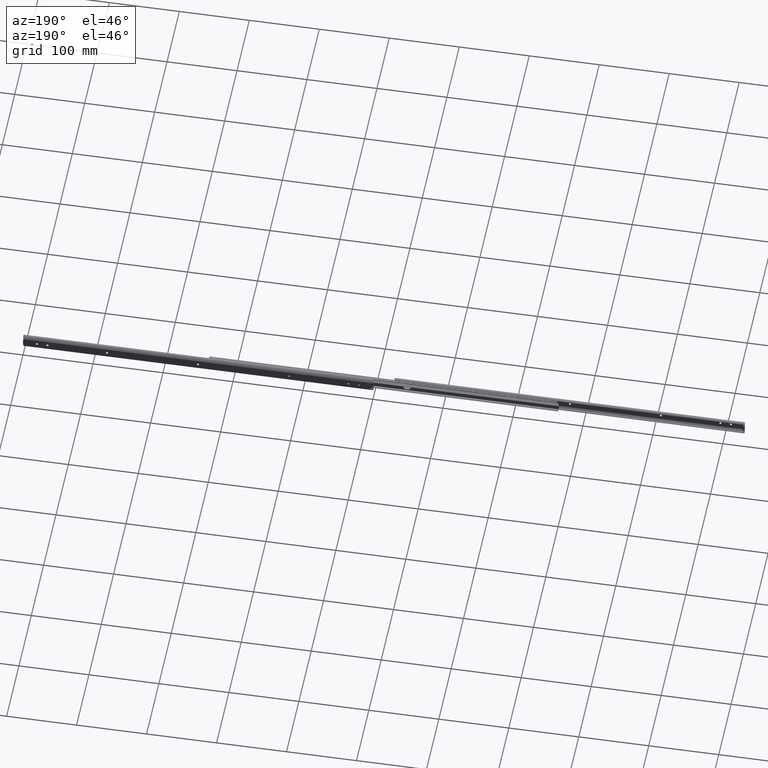
[diagram: clean part render]
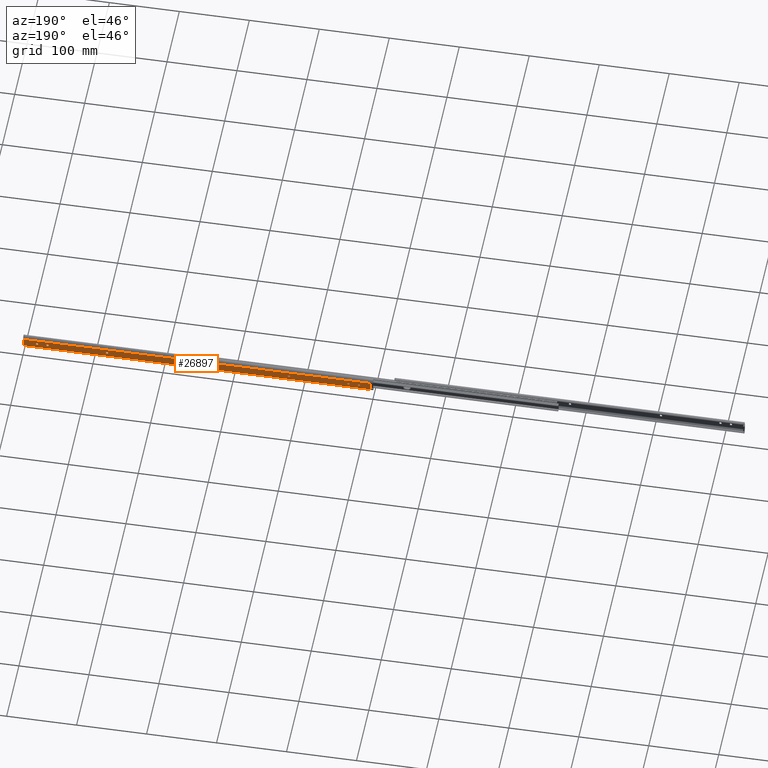
[diagram: same view with one face highlighted and labeled with its STEP entity id]
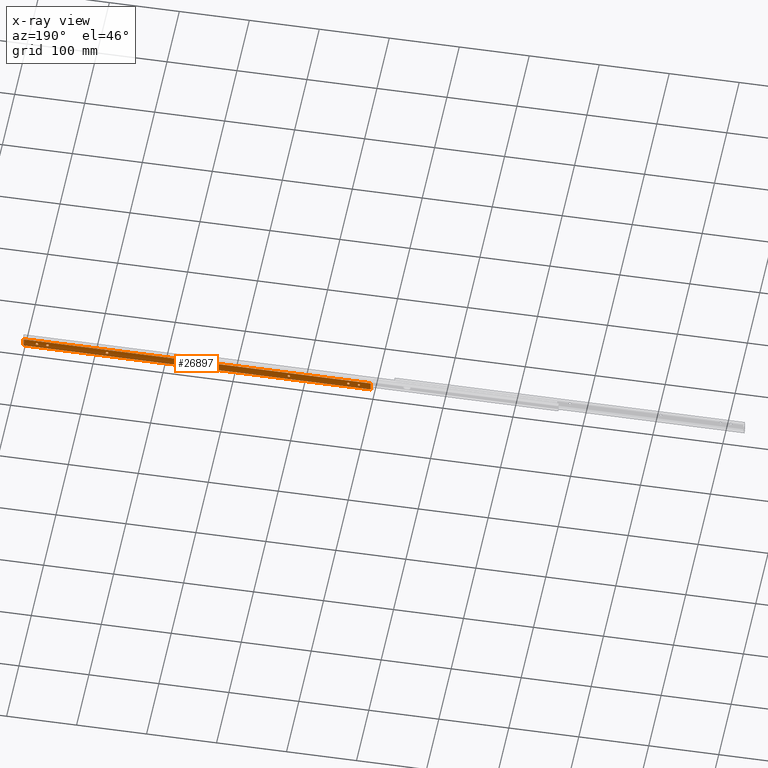
[diagram: x-ray of the same camera — body ghosted, the highlighted face saturated]
A machine part, auxiliary view. The second image highlights one B-rep face of the part: STEP entity #26897.
The next image is the same camera in x-ray: the body ghosted, the highlighted face saturated — about 0% of this face is hidden behind the body in this view.
In plain terms, the highlighted face is a freeform B-spline surface patch.
Its self-contained STEP definition (entity closure, byte-faithful):
#23578=CARTESIAN_POINT('',(21.597015676147201,5.204170E-017,-0.097677684964874));
#23579=VERTEX_POINT('',#23578);
#23585=CARTESIAN_POINT('',(20.0,0.0,-1.600000000000000));
#23586=VERTEX_POINT('',#23585);
#23587=CARTESIAN_POINT('',(20.0,0.0,-1.600000000000000));
#23588=CARTESIAN_POINT('',(21.505129666052557,0.0,-1.600000000000001));
#23589=CARTESIAN_POINT('',(21.597015676147201,5.204170E-017,-0.097677684964874));
#23597=(BOUNDED_CURVE()B_SPLINE_CURVE(2,(#23587,#23588,#23589),.UNSPECIFIED.,.F.,.U.)B_SPLINE_CURVE_WITH_KNOTS((3,3),(0.500000000000000,0.739332957550924),.UNSPECIFIED.)CURVE()GEOMETRIC_REPRESENTATION_ITEM()RATIONAL_B_SPLINE_CURVE((1.0,0.719603998779066,0.976072031619401))REPRESENTATION_ITEM(''));
#23598=EDGE_CURVE('',#23586,#23579,#23597,.T.);
#23600=CARTESIAN_POINT('',(18.411184761992889,4.968999E-017,0.188854810572561));
#23601=VERTEX_POINT('',#23600);
#23602=CARTESIAN_POINT('',(18.411184761992882,4.968999E-017,0.188854810572561));
#23603=CARTESIAN_POINT('',(18.399999999999999,0.0,0.094758626936107));
#23604=CARTESIAN_POINT('',(18.399999999999999,0.0,0.0));
#23605=CARTESIAN_POINT('',(18.399999999999991,0.0,-1.600000000000000));
#23606=CARTESIAN_POINT('',(20.0,0.0,-1.600000000000000));
#23614=(BOUNDED_CURVE()B_SPLINE_CURVE(2,(#23602,#23603,#23604,#23605,#23606),.UNSPECIFIED.,.F.,.U.)B_SPLINE_CURVE_WITH_KNOTS((3,2,3),(0.229562466043801,0.250000000000000,0.500000000000000),.UNSPECIFIED.)CURVE()GEOMETRIC_REPRESENTATION_ITEM()RATIONAL_B_SPLINE_CURVE((0.956026739542767,0.976055939579838,1.0,0.707106781186548,1.0))REPRESENTATION_ITEM(''));
#23615=EDGE_CURVE('',#23601,#23586,#23614,.T.);
#23659=CARTESIAN_POINT('',(20.0,0.0,1.600000000000000));
#23660=VERTEX_POINT('',#23659);
#23661=CARTESIAN_POINT('',(20.0,0.0,1.600000000000000));
#23662=CARTESIAN_POINT('',(18.578920821747779,0.0,1.600000000000000));
#23663=CARTESIAN_POINT('',(18.411184761992882,4.968999E-017,0.188854810572561));
#23671=(BOUNDED_CURVE()B_SPLINE_CURVE(2,(#23661,#23662,#23663),.UNSPECIFIED.,.F.,.U.)B_SPLINE_CURVE_WITH_KNOTS((3,3),(0.0,0.229562466043801),.UNSPECIFIED.)CURVE()GEOMETRIC_REPRESENTATION_ITEM()RATIONAL_B_SPLINE_CURVE((1.0,0.731050841606709,0.956026739542767))REPRESENTATION_ITEM(''));
#23672=EDGE_CURVE('',#23660,#23601,#23671,.T.);
#23674=CARTESIAN_POINT('',(21.597015676147205,5.204170E-017,-0.097677684964874));
#23675=CARTESIAN_POINT('',(21.599999999999998,0.0,-0.048884443047715));
#23676=CARTESIAN_POINT('',(21.600000000000001,0.0,0.0));
#23677=CARTESIAN_POINT('',(21.600000000000005,0.0,1.600000000000000));
#23678=CARTESIAN_POINT('',(20.0,0.0,1.600000000000000));
#23686=(BOUNDED_CURVE()B_SPLINE_CURVE(2,(#23674,#23675,#23676,#23677,#23678),.UNSPECIFIED.,.F.,.U.)B_SPLINE_CURVE_WITH_KNOTS((3,2,3),(0.739332957550924,0.750000000000000,1.0),.UNSPECIFIED.)CURVE()GEOMETRIC_REPRESENTATION_ITEM()RATIONAL_B_SPLINE_CURVE((0.976072031619400,0.987502782407481,1.0,0.707106781186548,1.0))REPRESENTATION_ITEM(''));
#23687=EDGE_CURVE('',#23579,#23660,#23686,.T.);
#23722=CARTESIAN_POINT('',(35.299999999999997,8.526513E-014,-1.600000000000080));
#23723=VERTEX_POINT('',#23722);
#23729=CARTESIAN_POINT('',(34.700000000000003,0.0,-1.600000000000000));
#23730=VERTEX_POINT('',#23729);
#23731=CARTESIAN_POINT('',(34.700000000000003,0.0,-1.600000000000000));
#23732=CARTESIAN_POINT('',(35.299999999999997,8.526513E-014,-1.600000000000080));
#23733=QUASI_UNIFORM_CURVE('',1,(#23731,#23732),.UNSPECIFIED.,.F.,.U.);
#23734=EDGE_CURVE('',#23730,#23723,#23733,.T.);
#23780=CARTESIAN_POINT('',(34.700000000000003,0.0,1.600000000000025));
#23781=VERTEX_POINT('',#23780);
#23782=CARTESIAN_POINT('',(34.700000000000003,0.0,1.600000000000000));
#23783=CARTESIAN_POINT('',(33.100000000000009,0.0,1.600000000000000));
#23784=CARTESIAN_POINT('',(33.100000000000001,0.0,0.0));
#23785=CARTESIAN_POINT('',(33.100000000000009,0.0,-1.600000000000000));
#23786=CARTESIAN_POINT('',(34.700000000000003,0.0,-1.600000000000000));
#23794=(BOUNDED_CURVE()B_SPLINE_CURVE(2,(#23782,#23783,#23784,#23785,#23786),.UNSPECIFIED.,.F.,.U.)B_SPLINE_CURVE_WITH_KNOTS((3,2,3),(0.0,0.500000000000000,1.0),.UNSPECIFIED.)CURVE()GEOMETRIC_REPRESENTATION_ITEM()RATIONAL_B_SPLINE_CURVE((1.0,0.707106781186548,1.0,0.707106781186548,1.0))REPRESENTATION_ITEM(''));
#23795=EDGE_CURVE('',#23781,#23730,#23794,.T.);
#23818=CARTESIAN_POINT('',(35.299999999999997,0.0,1.600000000000025));
#23819=VERTEX_POINT('',#23818);
#23820=CARTESIAN_POINT('',(35.299999999999997,0.0,1.600000000000025));
#23821=CARTESIAN_POINT('',(34.700000000000003,0.0,1.600000000000025));
#23822=QUASI_UNIFORM_CURVE('',1,(#23820,#23821),.UNSPECIFIED.,.F.,.U.);
#23823=EDGE_CURVE('',#23819,#23781,#23822,.T.);
#23867=CARTESIAN_POINT('',(35.299999999999997,8.526513E-014,-1.600000000000080));
#23868=CARTESIAN_POINT('',(36.900000000000006,0.0,-1.600000000000000));
#23869=CARTESIAN_POINT('',(36.899999999999999,0.0,0.0));
#23870=CARTESIAN_POINT('',(36.900000000000006,0.0,1.600000000000000));
#23871=CARTESIAN_POINT('',(35.299999999999997,0.0,1.600000000000000));
#23879=(BOUNDED_CURVE()B_SPLINE_CURVE(2,(#23867,#23868,#23869,#23870,#23871),.UNSPECIFIED.,.F.,.U.)B_SPLINE_CURVE_WITH_KNOTS((3,2,3),(0.0,0.500000000000000,1.0),.UNSPECIFIED.)CURVE()GEOMETRIC_REPRESENTATION_ITEM()RATIONAL_B_SPLINE_CURVE((1.0,0.707106781186548,1.0,0.707106781186548,1.0))REPRESENTATION_ITEM(''));
#23880=EDGE_CURVE('',#23723,#23819,#23879,.T.);
#23923=CARTESIAN_POINT('',(120.300000000000000,1.110223E-013,1.600000000000000));
#23924=VERTEX_POINT('',#23923);
#23930=CARTESIAN_POINT('',(120.300000000000000,0.0,-1.600000000000080));
#23931=VERTEX_POINT('',#23930);
#23932=CARTESIAN_POINT('',(120.300000000000000,0.0,-1.600000000000000));
#23933=CARTESIAN_POINT('',(121.900000000000010,0.0,-1.600000000000000));
#23934=CARTESIAN_POINT('',(121.900000000000010,0.0,0.0));
#23935=CARTESIAN_POINT('',(121.900000000000010,0.0,1.600000000000000));
#23936=CARTESIAN_POINT('',(120.300000000000000,0.0,1.600000000000000));
#23944=(BOUNDED_CURVE()B_SPLINE_CURVE(2,(#23932,#23933,#23934,#23935,#23936),.UNSPECIFIED.,.F.,.U.)B_SPLINE_CURVE_WITH_KNOTS((3,2,3),(0.0,0.500000000000000,1.0),.UNSPECIFIED.)CURVE()GEOMETRIC_REPRESENTATION_ITEM()RATIONAL_B_SPLINE_CURVE((1.0,0.707106781186548,1.0,0.707106781186548,1.0))REPRESENTATION_ITEM(''));
#23945=EDGE_CURVE('',#23931,#23924,#23944,.T.);
#23968=CARTESIAN_POINT('',(119.700000000000000,0.0,-1.600000000000000));
#23969=VERTEX_POINT('',#23968);
#23970=CARTESIAN_POINT('',(119.700000000000000,0.0,-1.600000000000000));
#23971=CARTESIAN_POINT('',(120.300000000000000,0.0,-1.600000000000080));
#23972=QUASI_UNIFORM_CURVE('',1,(#23970,#23971),.UNSPECIFIED.,.F.,.U.);
#23973=EDGE_CURVE('',#23969,#23931,#23972,.T.);
#24019=CARTESIAN_POINT('',(119.700000000000000,0.0,1.600000000000000));
#24020=VERTEX_POINT('',#24019);
#24021=CARTESIAN_POINT('',(119.700000000000000,0.0,1.600000000000000));
#24022=CARTESIAN_POINT('',(118.099999999999980,0.0,1.600000000000000));
#24023=CARTESIAN_POINT('',(118.099999999999990,0.0,0.0));
#24024=CARTESIAN_POINT('',(118.099999999999980,0.0,-1.600000000000000));
#24025=CARTESIAN_POINT('',(119.700000000000000,0.0,-1.600000000000000));
#24033=(BOUNDED_CURVE()B_SPLINE_CURVE(2,(#24021,#24022,#24023,#24024,#24025),.UNSPECIFIED.,.F.,.U.)B_SPLINE_CURVE_WITH_KNOTS((3,2,3),(0.0,0.500000000000000,1.0),.UNSPECIFIED.)CURVE()GEOMETRIC_REPRESENTATION_ITEM()RATIONAL_B_SPLINE_CURVE((1.0,0.707106781186548,1.0,0.707106781186548,1.0))REPRESENTATION_ITEM(''));
#24034=EDGE_CURVE('',#24020,#23969,#24033,.T.);
#24055=CARTESIAN_POINT('',(120.300000000000000,1.110223E-013,1.600000000000000));
#24056=CARTESIAN_POINT('',(119.700000000000000,0.0,1.600000000000000));
#24057=QUASI_UNIFORM_CURVE('',1,(#24055,#24056),.UNSPECIFIED.,.F.,.U.);
#24058=EDGE_CURVE('',#23924,#24020,#24057,.T.);
#24078=CARTESIAN_POINT('',(250.300000000000010,8.526513E-014,-1.600000000000000));
#24079=VERTEX_POINT('',#24078);
#24085=CARTESIAN_POINT('',(249.699999999999990,0.0,-1.600000000000000));
#24086=VERTEX_POINT('',#24085);
#24087=CARTESIAN_POINT('',(249.699999999999990,0.0,-1.600000000000000));
#24088=CARTESIAN_POINT('',(250.300000000000010,8.526513E-014,-1.600000000000000));
#24089=QUASI_UNIFORM_CURVE('',1,(#24087,#24088),.UNSPECIFIED.,.F.,.U.);
#24090=EDGE_CURVE('',#24086,#24079,#24089,.T.);
#24136=CARTESIAN_POINT('',(249.699999999999990,0.0,1.599999999999910));
#24137=VERTEX_POINT('',#24136);
#24138=CARTESIAN_POINT('',(249.699999999999990,0.0,1.600000000000000));
#24139=CARTESIAN_POINT('',(248.100000000000080,0.0,1.600000000000000));
#24140=CARTESIAN_POINT('',(248.099999999999990,0.0,0.0));
#24141=CARTESIAN_POINT('',(248.100000000000080,0.0,-1.600000000000000));
#24142=CARTESIAN_POINT('',(249.699999999999990,0.0,-1.600000000000000));
#24150=(BOUNDED_CURVE()B_SPLINE_CURVE(2,(#24138,#24139,#24140,#24141,#24142),.UNSPECIFIED.,.F.,.U.)B_SPLINE_CURVE_WITH_KNOTS((3,2,3),(0.0,0.500000000000000,1.0),.UNSPECIFIED.)CURVE()GEOMETRIC_REPRESENTATION_ITEM()RATIONAL_B_SPLINE_CURVE((1.0,0.707106781186548,1.0,0.707106781186548,1.0))REPRESENTATION_ITEM(''));
#24151=EDGE_CURVE('',#24137,#24086,#24150,.T.);
#24174=CARTESIAN_POINT('',(250.300000000000010,0.0,1.599999999999910));
#24175=VERTEX_POINT('',#24174);
#24176=CARTESIAN_POINT('',(250.300000000000010,0.0,1.599999999999910));
#24177=CARTESIAN_POINT('',(249.699999999999990,0.0,1.599999999999910));
#24178=QUASI_UNIFORM_CURVE('',1,(#24176,#24177),.UNSPECIFIED.,.F.,.U.);
#24179=EDGE_CURVE('',#24175,#24137,#24178,.T.);
#24223=CARTESIAN_POINT('',(250.300000000000010,0.0,-1.600000000000000));
#24224=CARTESIAN_POINT('',(251.900000000000090,0.0,-1.600000000000000));
#24225=CARTESIAN_POINT('',(251.900000000000010,0.0,0.0));
#24226=CARTESIAN_POINT('',(251.900000000000090,0.0,1.600000000000000));
#24227=CARTESIAN_POINT('',(250.300000000000010,0.0,1.600000000000000));
#24235=(BOUNDED_CURVE()B_SPLINE_CURVE(2,(#24223,#24224,#24225,#24226,#24227),.UNSPECIFIED.,.F.,.U.)B_SPLINE_CURVE_WITH_KNOTS((3,2,3),(0.0,0.500000000000000,1.0),.UNSPECIFIED.)CURVE()GEOMETRIC_REPRESENTATION_ITEM()RATIONAL_B_SPLINE_CURVE((1.0,0.707106781186548,1.0,0.707106781186548,1.0))REPRESENTATION_ITEM(''));
#24236=EDGE_CURVE('',#24079,#24175,#24235,.T.);
#24256=CARTESIAN_POINT('',(380.300000000000010,8.526513E-014,-1.600000000000000));
#24257=VERTEX_POINT('',#24256);
#24263=CARTESIAN_POINT('',(379.699999999999990,0.0,-1.600000000000025));
#24264=VERTEX_POINT('',#24263);
#24265=CARTESIAN_POINT('',(379.699999999999990,0.0,-1.600000000000025));
#24266=CARTESIAN_POINT('',(380.300000000000010,8.526513E-014,-1.600000000000000));
#24267=QUASI_UNIFORM_CURVE('',1,(#24265,#24266),.UNSPECIFIED.,.F.,.U.);
#24268=EDGE_CURVE('',#24264,#24257,#24267,.T.);
#24314=CARTESIAN_POINT('',(379.699999999999990,0.0,1.599999999999910));
#24315=VERTEX_POINT('',#24314);
#24316=CARTESIAN_POINT('',(379.699999999999990,0.0,1.600000000000025));
#24317=CARTESIAN_POINT('',(378.100000000000020,0.0,1.600000000000026));
#24318=CARTESIAN_POINT('',(378.099999999999910,0.0,0.0));
#24319=CARTESIAN_POINT('',(378.100000000000020,0.0,-1.600000000000026));
#24320=CARTESIAN_POINT('',(379.699999999999990,0.0,-1.600000000000025));
#24328=(BOUNDED_CURVE()B_SPLINE_CURVE(2,(#24316,#24317,#24318,#24319,#24320),.UNSPECIFIED.,.F.,.U.)B_SPLINE_CURVE_WITH_KNOTS((3,2,3),(0.0,0.500000000000000,1.0),.UNSPECIFIED.)CURVE()GEOMETRIC_REPRESENTATION_ITEM()RATIONAL_B_SPLINE_CURVE((1.0,0.707106781186547,1.0,0.707106781186547,1.0))REPRESENTATION_ITEM(''));
#24329=EDGE_CURVE('',#24315,#24264,#24328,.T.);
#24352=CARTESIAN_POINT('',(380.300000000000010,0.0,1.599999999999910));
#24353=VERTEX_POINT('',#24352);
#24354=CARTESIAN_POINT('',(380.300000000000010,0.0,1.599999999999910));
#24355=CARTESIAN_POINT('',(379.699999999999990,0.0,1.599999999999910));
#24356=QUASI_UNIFORM_CURVE('',1,(#24354,#24355),.UNSPECIFIED.,.F.,.U.);
#24357=EDGE_CURVE('',#24353,#24315,#24356,.T.);
#24401=CARTESIAN_POINT('',(380.300000000000010,0.0,-1.600000000000025));
#24402=CARTESIAN_POINT('',(381.900000000000150,0.0,-1.600000000000026));
#24403=CARTESIAN_POINT('',(381.900000000000090,0.0,0.0));
#24404=CARTESIAN_POINT('',(381.900000000000150,0.0,1.600000000000026));
#24405=CARTESIAN_POINT('',(380.300000000000010,0.0,1.600000000000025));
#24413=(BOUNDED_CURVE()B_SPLINE_CURVE(2,(#24401,#24402,#24403,#24404,#24405),.UNSPECIFIED.,.F.,.U.)B_SPLINE_CURVE_WITH_KNOTS((3,2,3),(0.0,0.500000000000000,1.0),.UNSPECIFIED.)CURVE()GEOMETRIC_REPRESENTATION_ITEM()RATIONAL_B_SPLINE_CURVE((1.0,0.707106781186547,1.0,0.707106781186547,1.0))REPRESENTATION_ITEM(''));
#24414=EDGE_CURVE('',#24257,#24353,#24413,.T.);
#24434=CARTESIAN_POINT('',(465.300000000000010,8.526513E-014,-1.600000000000000));
#24435=VERTEX_POINT('',#24434);
#24441=CARTESIAN_POINT('',(464.699999999999990,0.0,-1.600000000000025));
#24442=VERTEX_POINT('',#24441);
#24443=CARTESIAN_POINT('',(464.699999999999990,0.0,-1.600000000000025));
#24444=CARTESIAN_POINT('',(465.300000000000010,8.526513E-014,-1.600000000000000));
#24445=QUASI_UNIFORM_CURVE('',1,(#24443,#24444),.UNSPECIFIED.,.F.,.U.);
#24446=EDGE_CURVE('',#24442,#24435,#24445,.T.);
#24492=CARTESIAN_POINT('',(464.699999999999990,0.0,1.599999999999910));
#24493=VERTEX_POINT('',#24492);
#24494=CARTESIAN_POINT('',(464.699999999999990,0.0,1.600000000000025));
#24495=CARTESIAN_POINT('',(463.099999999999970,0.0,1.600000000000026));
#24496=CARTESIAN_POINT('',(463.100000000000020,0.0,0.0));
#24497=CARTESIAN_POINT('',(463.099999999999970,0.0,-1.600000000000026));
#24498=CARTESIAN_POINT('',(464.699999999999990,0.0,-1.600000000000025));
#24506=(BOUNDED_CURVE()B_SPLINE_CURVE(2,(#24494,#24495,#24496,#24497,#24498),.UNSPECIFIED.,.F.,.U.)B_SPLINE_CURVE_WITH_KNOTS((3,2,3),(0.0,0.500000000000000,1.0),.UNSPECIFIED.)CURVE()GEOMETRIC_REPRESENTATION_ITEM()RATIONAL_B_SPLINE_CURVE((1.0,0.707106781186547,1.0,0.707106781186547,1.0))REPRESENTATION_ITEM(''));
#24507=EDGE_CURVE('',#24493,#24442,#24506,.T.);
#24530=CARTESIAN_POINT('',(465.300000000000010,0.0,1.599999999999910));
#24531=VERTEX_POINT('',#24530);
#24532=CARTESIAN_POINT('',(465.300000000000010,0.0,1.599999999999910));
#24533=CARTESIAN_POINT('',(464.699999999999990,0.0,1.599999999999910));
#24534=QUASI_UNIFORM_CURVE('',1,(#24532,#24533),.UNSPECIFIED.,.F.,.U.);
#24535=EDGE_CURVE('',#24531,#24493,#24534,.T.);
#24579=CARTESIAN_POINT('',(465.300000000000010,0.0,-1.600000000000025));
#24580=CARTESIAN_POINT('',(466.899999999999980,0.0,-1.600000000000026));
#24581=CARTESIAN_POINT('',(466.899999999999980,0.0,0.0));
#24582=CARTESIAN_POINT('',(466.899999999999980,0.0,1.600000000000026));
#24583=CARTESIAN_POINT('',(465.300000000000010,0.0,1.600000000000025));
#24591=(BOUNDED_CURVE()B_SPLINE_CURVE(2,(#24579,#24580,#24581,#24582,#24583),.UNSPECIFIED.,.F.,.U.)B_SPLINE_CURVE_WITH_KNOTS((3,2,3),(0.0,0.500000000000000,1.0),.UNSPECIFIED.)CURVE()GEOMETRIC_REPRESENTATION_ITEM()RATIONAL_B_SPLINE_CURVE((1.0,0.707106781186547,1.0,0.707106781186547,1.0))REPRESENTATION_ITEM(''));
#24592=EDGE_CURVE('',#24435,#24531,#24591,.T.);
#24612=CARTESIAN_POINT('',(480.300000000000010,8.526513E-014,-1.600000000000000));
#24613=VERTEX_POINT('',#24612);
#24619=CARTESIAN_POINT('',(479.699999999999990,0.0,-1.600000000000025));
#24620=VERTEX_POINT('',#24619);
#24621=CARTESIAN_POINT('',(479.699999999999990,0.0,-1.600000000000025));
#24622=CARTESIAN_POINT('',(480.300000000000010,8.526513E-014,-1.600000000000000));
#24623=QUASI_UNIFORM_CURVE('',1,(#24621,#24622),.UNSPECIFIED.,.F.,.U.);
#24624=EDGE_CURVE('',#24620,#24613,#24623,.T.);
#24670=CARTESIAN_POINT('',(479.699999999999990,0.0,1.599999999999910));
#24671=VERTEX_POINT('',#24670);
#24672=CARTESIAN_POINT('',(479.699999999999990,0.0,1.600000000000025));
#24673=CARTESIAN_POINT('',(478.099999999999970,0.0,1.600000000000026));
#24674=CARTESIAN_POINT('',(478.100000000000020,0.0,0.0));
#24675=CARTESIAN_POINT('',(478.099999999999970,0.0,-1.600000000000026));
#24676=CARTESIAN_POINT('',(479.699999999999990,0.0,-1.600000000000025));
#24684=(BOUNDED_CURVE()B_SPLINE_CURVE(2,(#24672,#24673,#24674,#24675,#24676),.UNSPECIFIED.,.F.,.U.)B_SPLINE_CURVE_WITH_KNOTS((3,2,3),(0.0,0.500000000000000,1.0),.UNSPECIFIED.)CURVE()GEOMETRIC_REPRESENTATION_ITEM()RATIONAL_B_SPLINE_CURVE((1.0,0.707106781186547,1.0,0.707106781186547,1.0))REPRESENTATION_ITEM(''));
#24685=EDGE_CURVE('',#24671,#24620,#24684,.T.);
#24708=CARTESIAN_POINT('',(480.300000000000010,0.0,1.599999999999910));
#24709=VERTEX_POINT('',#24708);
#24710=CARTESIAN_POINT('',(480.300000000000010,0.0,1.599999999999910));
#24711=CARTESIAN_POINT('',(479.699999999999990,0.0,1.599999999999910));
#24712=QUASI_UNIFORM_CURVE('',1,(#24710,#24711),.UNSPECIFIED.,.F.,.U.);
#24713=EDGE_CURVE('',#24709,#24671,#24712,.T.);
#24757=CARTESIAN_POINT('',(480.300000000000010,0.0,-1.600000000000025));
#24758=CARTESIAN_POINT('',(481.899999999999920,0.0,-1.600000000000026));
#24759=CARTESIAN_POINT('',(481.899999999999980,0.0,0.0));
#24760=CARTESIAN_POINT('',(481.899999999999920,0.0,1.600000000000026));
#24761=CARTESIAN_POINT('',(480.300000000000010,0.0,1.600000000000025));
#24769=(BOUNDED_CURVE()B_SPLINE_CURVE(2,(#24757,#24758,#24759,#24760,#24761),.UNSPECIFIED.,.F.,.U.)B_SPLINE_CURVE_WITH_KNOTS((3,2,3),(0.0,0.500000000000000,1.0),.UNSPECIFIED.)CURVE()GEOMETRIC_REPRESENTATION_ITEM()RATIONAL_B_SPLINE_CURVE((1.0,0.707106781186547,1.0,0.707106781186547,1.0))REPRESENTATION_ITEM(''));
#24770=EDGE_CURVE('',#24613,#24709,#24769,.T.);
#24829=CARTESIAN_POINT('',(499.0,0.0,-5.383484861008860));
#24830=VERTEX_POINT('',#24829);
#24842=CARTESIAN_POINT('',(499.0,0.0,5.383484861008770));
#24843=VERTEX_POINT('',#24842);
#24844=CARTESIAN_POINT('',(499.0,0.0,5.383484861008770));
#24845=CARTESIAN_POINT('',(499.0,0.0,-5.383484861008860));
#24846=QUASI_UNIFORM_CURVE('',1,(#24844,#24845),.UNSPECIFIED.,.F.,.U.);
#24847=EDGE_CURVE('',#24843,#24830,#24846,.T.);
#25253=CARTESIAN_POINT('',(498.424053688013880,0.0,6.081989000000000));
#25254=VERTEX_POINT('',#25253);
#25255=CARTESIAN_POINT('',(498.424053688014110,0.0,6.081989000000020));
#25256=CARTESIAN_POINT('',(498.534727763389640,0.0,5.586546312725789));
#25257=CARTESIAN_POINT('',(499.0,0.0,5.383484861008826));
#25265=(BOUNDED_CURVE()B_SPLINE_CURVE(2,(#25255,#25256,#25257),.UNSPECIFIED.,.F.,.U.)CURVE()GEOMETRIC_REPRESENTATION_ITEM()QUASI_UNIFORM_CURVE()RATIONAL_B_SPLINE_CURVE((1.0,0.891680690258839,1.0))REPRESENTATION_ITEM(''));
#25266=EDGE_CURVE('',#25254,#24843,#25265,.T.);
#25467=CARTESIAN_POINT('',(498.424053688013880,0.0,-6.081989000000000));
#25468=VERTEX_POINT('',#25467);
#25469=CARTESIAN_POINT('',(499.000000000000110,0.0,-5.383484861008925));
#25470=CARTESIAN_POINT('',(498.534727763389750,0.0,-5.586546312725862));
#25471=CARTESIAN_POINT('',(498.424053688014110,0.0,-6.081989000000025));
#25479=(BOUNDED_CURVE()B_SPLINE_CURVE(2,(#25469,#25470,#25471),.UNSPECIFIED.,.F.,.U.)CURVE()GEOMETRIC_REPRESENTATION_ITEM()QUASI_UNIFORM_CURVE()RATIONAL_B_SPLINE_CURVE((1.0,0.891680690258861,1.0))REPRESENTATION_ITEM(''));
#25480=EDGE_CURVE('',#24830,#25468,#25479,.T.);
#26804=CARTESIAN_POINT('',(3.100000000000000,7.958044E-014,-6.081989000000000));
#26805=VERTEX_POINT('',#26804);
#26806=CARTESIAN_POINT('',(498.424053688013880,0.0,-6.081989000000000));
#26807=CARTESIAN_POINT('',(3.100000000000000,7.958044E-014,-6.081989000000000));
#26808=QUASI_UNIFORM_CURVE('',1,(#26806,#26807),.UNSPECIFIED.,.F.,.U.);
#26809=EDGE_CURVE('',#25468,#26805,#26808,.T.);
#26832=CARTESIAN_POINT('',(-21.670204038849619,8.526513E-014,-6.689579519878855));
#26833=CARTESIAN_POINT('',(-21.670204038849619,8.526513E-014,6.689579084861102));
#26834=CARTESIAN_POINT('',(523.770217339924100,8.526513E-014,-6.689579519878855));
#26835=CARTESIAN_POINT('',(523.770217339924100,8.526513E-014,6.689579084861102));
#26836=B_SPLINE_SURFACE_WITH_KNOTS('',1,1,((#26832,#26834),(#26833,#26835)),.UNSPECIFIED.,.F.,.F.,.U.,(2,2),(2,2),(0.0,13.379158604739960),(0.0,545.440421378773750),.UNSPECIFIED.);
#26837=ORIENTED_EDGE('',*,*,#25266,.T.);
#26838=ORIENTED_EDGE('',*,*,#24847,.T.);
#26839=ORIENTED_EDGE('',*,*,#25480,.T.);
#26840=ORIENTED_EDGE('',*,*,#26809,.T.);
#26841=CARTESIAN_POINT('',(3.100000000000000,-9.063930E-014,6.081989000000000));
#26842=VERTEX_POINT('',#26841);
#26843=CARTESIAN_POINT('',(3.100000000000000,-9.063930E-014,6.081989000000000));
#26844=CARTESIAN_POINT('',(3.100000000000000,7.958044E-014,-6.081989000000000));
#26845=QUASI_UNIFORM_CURVE('',1,(#26843,#26844),.UNSPECIFIED.,.F.,.U.);
#26846=EDGE_CURVE('',#26842,#26805,#26845,.T.);
#26847=ORIENTED_EDGE('',*,*,#26846,.F.);
#26848=CARTESIAN_POINT('',(498.424053688013880,0.0,6.081989000000000));
#26849=CARTESIAN_POINT('',(3.100000000000000,-9.063930E-014,6.081989000000000));
#26850=QUASI_UNIFORM_CURVE('',1,(#26848,#26849),.UNSPECIFIED.,.F.,.U.);
#26851=EDGE_CURVE('',#25254,#26842,#26850,.T.);
#26852=ORIENTED_EDGE('',*,*,#26851,.F.);
#26853=EDGE_LOOP('',(#26837,#26838,#26839,#26840,#26847,#26852));
#26854=FACE_OUTER_BOUND('',#26853,.T.);
#26855=ORIENTED_EDGE('',*,*,#23880,.T.);
#26856=ORIENTED_EDGE('',*,*,#23823,.T.);
#26857=ORIENTED_EDGE('',*,*,#23795,.T.);
#26858=ORIENTED_EDGE('',*,*,#23734,.T.);
#26859=EDGE_LOOP('',(#26855,#26856,#26857,#26858));
#26860=FACE_BOUND('',#26859,.T.);
#26861=ORIENTED_EDGE('',*,*,#24058,.T.);
#26862=ORIENTED_EDGE('',*,*,#24034,.T.);
#26863=ORIENTED_EDGE('',*,*,#23973,.T.);
#26864=ORIENTED_EDGE('',*,*,#23945,.T.);
#26865=EDGE_LOOP('',(#26861,#26862,#26863,#26864));
#26866=FACE_BOUND('',#26865,.T.);
#26867=ORIENTED_EDGE('',*,*,#24236,.T.);
#26868=ORIENTED_EDGE('',*,*,#24179,.T.);
#26869=ORIENTED_EDGE('',*,*,#24151,.T.);
#26870=ORIENTED_EDGE('',*,*,#24090,.T.);
#26871=EDGE_LOOP('',(#26867,#26868,#26869,#26870));
#26872=FACE_BOUND('',#26871,.T.);
#26873=ORIENTED_EDGE('',*,*,#24414,.T.);
#26874=ORIENTED_EDGE('',*,*,#24357,.T.);
#26875=ORIENTED_EDGE('',*,*,#24329,.T.);
#26876=ORIENTED_EDGE('',*,*,#24268,.T.);
#26877=EDGE_LOOP('',(#26873,#26874,#26875,#26876));
#26878=FACE_BOUND('',#26877,.T.);
#26879=ORIENTED_EDGE('',*,*,#24592,.T.);
#26880=ORIENTED_EDGE('',*,*,#24535,.T.);
#26881=ORIENTED_EDGE('',*,*,#24507,.T.);
#26882=ORIENTED_EDGE('',*,*,#24446,.T.);
#26883=EDGE_LOOP('',(#26879,#26880,#26881,#26882));
#26884=FACE_BOUND('',#26883,.T.);
#26885=ORIENTED_EDGE('',*,*,#24770,.T.);
#26886=ORIENTED_EDGE('',*,*,#24713,.T.);
#26887=ORIENTED_EDGE('',*,*,#24685,.T.);
#26888=ORIENTED_EDGE('',*,*,#24624,.T.);
#26889=EDGE_LOOP('',(#26885,#26886,#26887,#26888));
#26890=FACE_BOUND('',#26889,.T.);
#26891=ORIENTED_EDGE('',*,*,#23598,.T.);
#26892=ORIENTED_EDGE('',*,*,#23687,.T.);
#26893=ORIENTED_EDGE('',*,*,#23672,.T.);
#26894=ORIENTED_EDGE('',*,*,#23615,.T.);
#26895=EDGE_LOOP('',(#26891,#26892,#26893,#26894));
#26896=FACE_BOUND('',#26895,.T.);
#26897=ADVANCED_FACE('',(#26854,#26860,#26866,#26872,#26878,#26884,#26890,#26896),#26836,.T.);